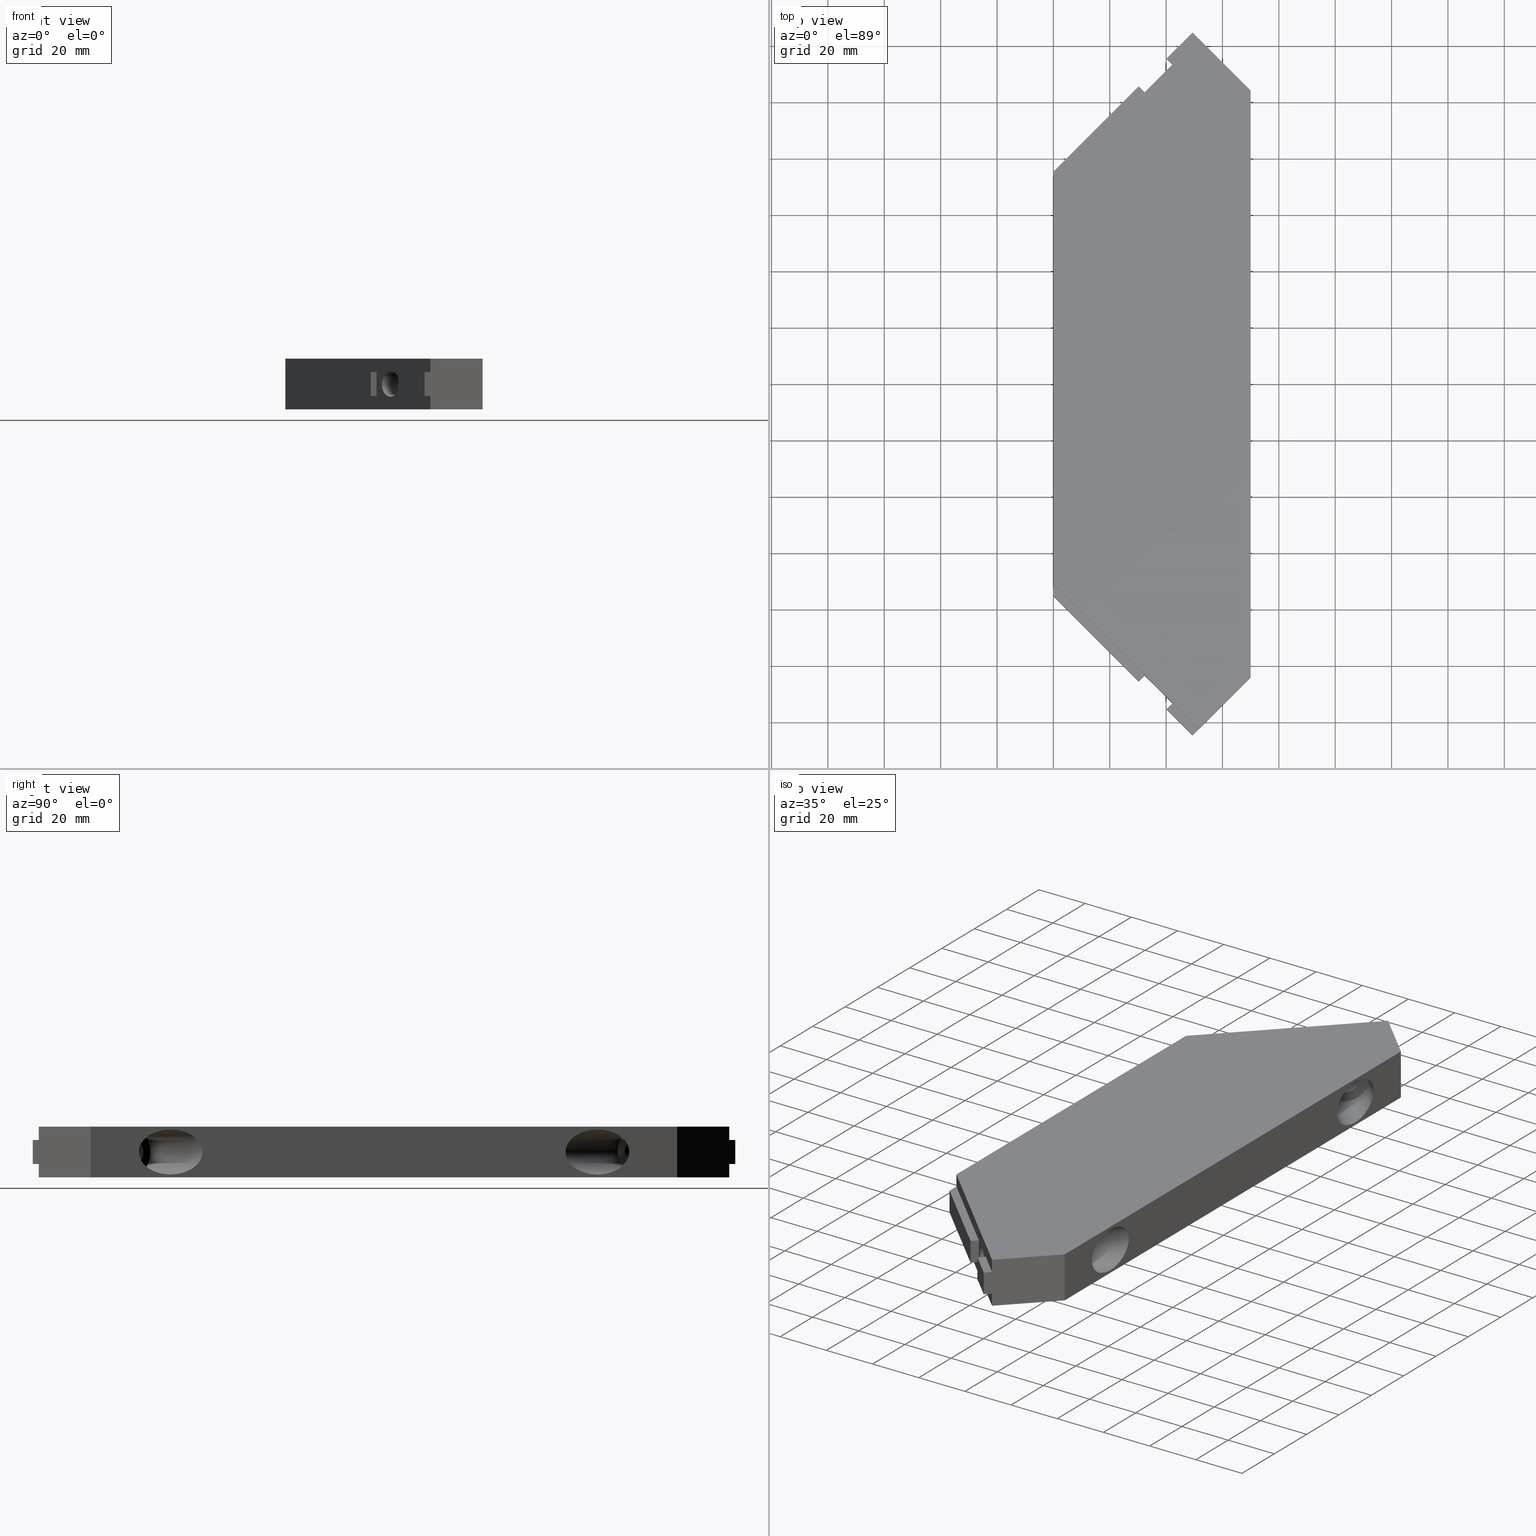
[diagram: canonical four-view strip — front | top / right | iso, engineering-drawing reading convention]
A machine part, canonical four-view strip (front | top / right | iso — engineering-drawing reading convention). The complete STEP part file that produces these views, byte-faithful:
ISO-10303-21;
HEADER;
/* Generated by software containing ST-Developer
 * from STEP Tools, Inc. (www.steptools.com) 
 */

FILE_DESCRIPTION(
/* description */ ('RINFORZO ANGOLARE SERIE 45 S/FORI FILET.'),
/* implementation_level */ '2;1');

FILE_NAME(
/* name */ 
'Q:\\Catalogo\\2_Accessori Dierre\\Per Download Web e catalogo cartace
o\\CATALOGO ELEMENTI ASSEMBLAGGIO\\PAGINA 40\\DGIPD0000070.stp',
/* time_stamp */ '2018-11-02T11:03:30+01:00',
/* author */ ('fzagni'),
/* organization */ (''),
/* preprocessor_version */ 'ST-DEVELOPER v16.1',
/* originating_system */ 'Autodesk Inventor 2016',
/* authorisation */ '');

FILE_SCHEMA (('AUTOMOTIVE_DESIGN { 1 0 10303 214 3 1 1 }'));
ENDSEC;

DATA;
#10=MECHANICAL_DESIGN_GEOMETRIC_PRESENTATION_REPRESENTATION('',(#13),#913);
#11=SHAPE_REPRESENTATION_RELATIONSHIP('SRR','None',#922,#12);
#12=ADVANCED_BREP_SHAPE_REPRESENTATION('',(#14),#912);
#13=STYLED_ITEM('',(#931),#14);
#14=MANIFOLD_SOLID_BREP('None',#569);
#15=CYLINDRICAL_SURFACE('',#599,4.50000000000004);
#16=CYLINDRICAL_SURFACE('',#603,8.00000037595068);
#17=CYLINDRICAL_SURFACE('',#604,8.00000037595084);
#18=CYLINDRICAL_SURFACE('',#608,4.49999999999994);
#19=CIRCLE('',#575,4.50000000000004);
#20=CIRCLE('',#577,4.49999999999994);
#21=CIRCLE('',#600,4.50000000000004);
#22=CIRCLE('',#602,8.00000037595068);
#23=CIRCLE('',#605,8.00000037595082);
#24=CIRCLE('',#607,4.49999999999994);
#25=FACE_BOUND('',#68,.T.);
#26=FACE_BOUND('',#69,.T.);
#27=FACE_BOUND('',#71,.T.);
#28=FACE_BOUND('',#73,.T.);
#29=FACE_BOUND('',#96,.T.);
#30=FACE_BOUND('',#98,.T.);
#31=FACE_BOUND('',#100,.T.);
#32=FACE_BOUND('',#102,.T.);
#33=FACE_BOUND('',#104,.T.);
#34=FACE_BOUND('',#106,.T.);
#35=ELLIPSE('',#572,11.3137090306593,8.00000037595068);
#36=ELLIPSE('',#573,11.3137090306595,8.00000037595084);
#37=FACE_OUTER_BOUND('',#67,.T.);
#38=FACE_OUTER_BOUND('',#70,.T.);
#39=FACE_OUTER_BOUND('',#72,.T.);
#40=FACE_OUTER_BOUND('',#74,.T.);
#41=FACE_OUTER_BOUND('',#75,.T.);
#42=FACE_OUTER_BOUND('',#76,.T.);
#43=FACE_OUTER_BOUND('',#77,.T.);
#44=FACE_OUTER_BOUND('',#78,.T.);
#45=FACE_OUTER_BOUND('',#79,.T.);
#46=FACE_OUTER_BOUND('',#80,.T.);
#47=FACE_OUTER_BOUND('',#81,.T.);
#48=FACE_OUTER_BOUND('',#82,.T.);
#49=FACE_OUTER_BOUND('',#83,.T.);
#50=FACE_OUTER_BOUND('',#84,.T.);
#51=FACE_OUTER_BOUND('',#85,.T.);
#52=FACE_OUTER_BOUND('',#86,.T.);
#53=FACE_OUTER_BOUND('',#87,.T.);
#54=FACE_OUTER_BOUND('',#88,.T.);
#55=FACE_OUTER_BOUND('',#89,.T.);
#56=FACE_OUTER_BOUND('',#90,.T.);
#57=FACE_OUTER_BOUND('',#91,.T.);
#58=FACE_OUTER_BOUND('',#92,.T.);
#59=FACE_OUTER_BOUND('',#93,.T.);
#60=FACE_OUTER_BOUND('',#94,.T.);
#61=FACE_OUTER_BOUND('',#95,.T.);
#62=FACE_OUTER_BOUND('',#97,.T.);
#63=FACE_OUTER_BOUND('',#99,.T.);
#64=FACE_OUTER_BOUND('',#101,.T.);
#65=FACE_OUTER_BOUND('',#103,.T.);
#66=FACE_OUTER_BOUND('',#105,.T.);
#67=EDGE_LOOP('',(#365,#366,#367,#368));
#68=EDGE_LOOP('',(#369));
#69=EDGE_LOOP('',(#370));
#70=EDGE_LOOP('',(#371,#372,#373,#374,#375,#376,#377,#378,#379,#380,#381,
#382));
#71=EDGE_LOOP('',(#383));
#72=EDGE_LOOP('',(#384,#385,#386,#387,#388,#389,#390,#391,#392,#393,#394,
#395));
#73=EDGE_LOOP('',(#396));
#74=EDGE_LOOP('',(#397,#398,#399,#400,#401,#402));
#75=EDGE_LOOP('',(#403,#404,#405,#406,#407,#408));
#76=EDGE_LOOP('',(#409,#410,#411,#412));
#77=EDGE_LOOP('',(#413,#414,#415,#416));
#78=EDGE_LOOP('',(#417,#418,#419,#420));
#79=EDGE_LOOP('',(#421,#422,#423,#424));
#80=EDGE_LOOP('',(#425,#426,#427,#428));
#81=EDGE_LOOP('',(#429,#430,#431,#432));
#82=EDGE_LOOP('',(#433,#434,#435,#436));
#83=EDGE_LOOP('',(#437,#438,#439,#440));
#84=EDGE_LOOP('',(#441,#442,#443,#444,#445,#446,#447,#448));
#85=EDGE_LOOP('',(#449,#450,#451,#452));
#86=EDGE_LOOP('',(#453,#454,#455,#456));
#87=EDGE_LOOP('',(#457,#458,#459,#460));
#88=EDGE_LOOP('',(#461,#462,#463,#464));
#89=EDGE_LOOP('',(#465,#466,#467,#468,#469,#470,#471,#472,#473,#474,#475,
#476));
#90=EDGE_LOOP('',(#477,#478,#479,#480));
#91=EDGE_LOOP('',(#481,#482,#483,#484));
#92=EDGE_LOOP('',(#485,#486,#487,#488));
#93=EDGE_LOOP('',(#489,#490,#491,#492));
#94=EDGE_LOOP('',(#493,#494,#495,#496,#497,#498,#499,#500));
#95=EDGE_LOOP('',(#501));
#96=EDGE_LOOP('',(#502));
#97=EDGE_LOOP('',(#503));
#98=EDGE_LOOP('',(#504));
#99=EDGE_LOOP('',(#505));
#100=EDGE_LOOP('',(#506));
#101=EDGE_LOOP('',(#507));
#102=EDGE_LOOP('',(#508));
#103=EDGE_LOOP('',(#509));
#104=EDGE_LOOP('',(#510));
#105=EDGE_LOOP('',(#511));
#106=EDGE_LOOP('',(#512));
#107=LINE('',#757,#173);
#108=LINE('',#759,#174);
#109=LINE('',#761,#175);
#110=LINE('',#762,#176);
#111=LINE('',#770,#177);
#112=LINE('',#772,#178);
#113=LINE('',#774,#179);
#114=LINE('',#776,#180);
#115=LINE('',#778,#181);
#116=LINE('',#780,#182);
#117=LINE('',#782,#183);
#118=LINE('',#784,#184);
#119=LINE('',#786,#185);
#120=LINE('',#788,#186);
#121=LINE('',#790,#187);
#122=LINE('',#791,#188);
#123=LINE('',#797,#189);
#124=LINE('',#799,#190);
#125=LINE('',#801,#191);
#126=LINE('',#803,#192);
#127=LINE('',#805,#193);
#128=LINE('',#807,#194);
#129=LINE('',#809,#195);
#130=LINE('',#811,#196);
#131=LINE('',#813,#197);
#132=LINE('',#815,#198);
#133=LINE('',#817,#199);
#134=LINE('',#818,#200);
#135=LINE('',#822,#201);
#136=LINE('',#823,#202);
#137=LINE('',#824,#203);
#138=LINE('',#826,#204);
#139=LINE('',#827,#205);
#140=LINE('',#828,#206);
#141=LINE('',#832,#207);
#142=LINE('',#833,#208);
#143=LINE('',#834,#209);
#144=LINE('',#837,#210);
#145=LINE('',#839,#211);
#146=LINE('',#840,#212);
#147=LINE('',#842,#213);
#148=LINE('',#844,#214);
#149=LINE('',#848,#215);
#150=LINE('',#850,#216);
#151=LINE('',#852,#217);
#152=LINE('',#853,#218);
#153=LINE('',#855,#219);
#154=LINE('',#856,#220);
#155=LINE('',#858,#221);
#156=LINE('',#860,#222);
#157=LINE('',#865,#223);
#158=LINE('',#867,#224);
#159=LINE('',#869,#225);
#160=LINE('',#870,#226);
#161=LINE('',#872,#227);
#162=LINE('',#873,#228);
#163=LINE('',#875,#229);
#164=LINE('',#877,#230);
#165=LINE('',#882,#231);
#166=LINE('',#883,#232);
#167=LINE('',#884,#233);
#168=LINE('',#887,#234);
#169=LINE('',#889,#235);
#170=LINE('',#890,#236);
#171=LINE('',#892,#237);
#172=LINE('',#894,#238);
#173=VECTOR('',#613,18.);
#174=VECTOR('',#614,207.999999999168);
#175=VECTOR('',#615,18.);
#176=VECTOR('',#616,207.999999999168);
#177=VECTOR('',#623,4.75);
#178=VECTOR('',#624,12.999999780144);
#179=VECTOR('',#625,8.5);
#180=VECTOR('',#626,12.999999780144);
#181=VECTOR('',#627,4.75);
#182=VECTOR('',#628,72.831998461923);
#183=VECTOR('',#629,4.75);
#184=VECTOR('',#630,45.8319985921907);
#185=VECTOR('',#631,8.5);
#186=VECTOR('',#632,45.8319985921907);
#187=VECTOR('',#633,4.75);
#188=VECTOR('',#634,72.831998461923);
#189=VECTOR('',#639,4.75);
#190=VECTOR('',#640,45.831998592191);
#191=VECTOR('',#641,8.5);
#192=VECTOR('',#642,45.831998592191);
#193=VECTOR('',#643,4.75);
#194=VECTOR('',#644,72.831998461923);
#195=VECTOR('',#645,4.75);
#196=VECTOR('',#646,12.9999997801435);
#197=VECTOR('',#647,8.5);
#198=VECTOR('',#648,12.9999997801435);
#199=VECTOR('',#649,4.75);
#200=VECTOR('',#650,72.831998461923);
#201=VECTOR('',#655,26.1629509037977);
#202=VECTOR('',#656,141.999999999432);
#203=VECTOR('',#657,26.1629509037973);
#204=VECTOR('',#660,26.1629509037973);
#205=VECTOR('',#661,141.999999999432);
#206=VECTOR('',#662,26.1629509037977);
#207=VECTOR('',#665,8.5);
#208=VECTOR('',#666,2.99999951412127);
#209=VECTOR('',#667,2.99999951412127);
#210=VECTOR('',#670,42.8319983709626);
#211=VECTOR('',#671,8.5);
#212=VECTOR('',#672,42.8319983709626);
#213=VECTOR('',#675,4.24264099998299);
#214=VECTOR('',#678,4.24264099998299);
#215=VECTOR('',#681,12.9999997801437);
#216=VECTOR('',#682,8.5);
#217=VECTOR('',#683,12.9999997801437);
#218=VECTOR('',#684,8.5);
#219=VECTOR('',#687,2.99999951412086);
#220=VECTOR('',#688,2.99999951412086);
#221=VECTOR('',#691,2.99999951412108);
#222=VECTOR('',#694,2.99999951412108);
#223=VECTOR('',#699,42.831998370963);
#224=VECTOR('',#700,8.5);
#225=VECTOR('',#701,42.831998370963);
#226=VECTOR('',#702,8.5);
#227=VECTOR('',#705,2.99999951412133);
#228=VECTOR('',#706,2.99999951412133);
#229=VECTOR('',#709,4.24264099998302);
#230=VECTOR('',#712,4.24264099998302);
#231=VECTOR('',#717,8.5);
#232=VECTOR('',#718,2.99999951412139);
#233=VECTOR('',#719,2.99999951412139);
#234=VECTOR('',#722,12.9999997801436);
#235=VECTOR('',#723,8.5);
#236=VECTOR('',#724,12.9999997801436);
#237=VECTOR('',#727,2.99999951412147);
#238=VECTOR('',#730,2.99999951412147);
#239=VERTEX_POINT('',#755);
#240=VERTEX_POINT('',#756);
#241=VERTEX_POINT('',#758);
#242=VERTEX_POINT('',#760);
#243=VERTEX_POINT('',#763);
#244=VERTEX_POINT('',#765);
#245=VERTEX_POINT('',#768);
#246=VERTEX_POINT('',#769);
#247=VERTEX_POINT('',#771);
#248=VERTEX_POINT('',#773);
#249=VERTEX_POINT('',#775);
#250=VERTEX_POINT('',#777);
#251=VERTEX_POINT('',#779);
#252=VERTEX_POINT('',#781);
#253=VERTEX_POINT('',#783);
#254=VERTEX_POINT('',#785);
#255=VERTEX_POINT('',#787);
#256=VERTEX_POINT('',#789);
#257=VERTEX_POINT('',#792);
#258=VERTEX_POINT('',#795);
#259=VERTEX_POINT('',#796);
#260=VERTEX_POINT('',#798);
#261=VERTEX_POINT('',#800);
#262=VERTEX_POINT('',#802);
#263=VERTEX_POINT('',#804);
#264=VERTEX_POINT('',#806);
#265=VERTEX_POINT('',#808);
#266=VERTEX_POINT('',#810);
#267=VERTEX_POINT('',#812);
#268=VERTEX_POINT('',#814);
#269=VERTEX_POINT('',#816);
#270=VERTEX_POINT('',#819);
#271=VERTEX_POINT('',#830);
#272=VERTEX_POINT('',#831);
#273=VERTEX_POINT('',#836);
#274=VERTEX_POINT('',#838);
#275=VERTEX_POINT('',#846);
#276=VERTEX_POINT('',#847);
#277=VERTEX_POINT('',#849);
#278=VERTEX_POINT('',#851);
#279=VERTEX_POINT('',#863);
#280=VERTEX_POINT('',#864);
#281=VERTEX_POINT('',#866);
#282=VERTEX_POINT('',#868);
#283=VERTEX_POINT('',#880);
#284=VERTEX_POINT('',#881);
#285=VERTEX_POINT('',#886);
#286=VERTEX_POINT('',#888);
#287=VERTEX_POINT('',#897);
#288=VERTEX_POINT('',#900);
#289=VERTEX_POINT('',#904);
#290=VERTEX_POINT('',#907);
#291=EDGE_CURVE('',#239,#240,#107,.T.);
#292=EDGE_CURVE('',#240,#241,#108,.T.);
#293=EDGE_CURVE('',#242,#241,#109,.T.);
#294=EDGE_CURVE('',#239,#242,#110,.T.);
#295=EDGE_CURVE('',#243,#243,#35,.T.);
#296=EDGE_CURVE('',#244,#244,#36,.T.);
#297=EDGE_CURVE('',#245,#246,#111,.T.);
#298=EDGE_CURVE('',#247,#246,#112,.T.);
#299=EDGE_CURVE('',#248,#247,#113,.T.);
#300=EDGE_CURVE('',#248,#249,#114,.T.);
#301=EDGE_CURVE('',#249,#250,#115,.T.);
#302=EDGE_CURVE('',#250,#251,#116,.T.);
#303=EDGE_CURVE('',#252,#251,#117,.T.);
#304=EDGE_CURVE('',#252,#253,#118,.T.);
#305=EDGE_CURVE('',#253,#254,#119,.T.);
#306=EDGE_CURVE('',#255,#254,#120,.T.);
#307=EDGE_CURVE('',#256,#255,#121,.T.);
#308=EDGE_CURVE('',#245,#256,#122,.T.);
#309=EDGE_CURVE('',#257,#257,#19,.T.);
#310=EDGE_CURVE('',#258,#259,#123,.T.);
#311=EDGE_CURVE('',#260,#259,#124,.T.);
#312=EDGE_CURVE('',#261,#260,#125,.T.);
#313=EDGE_CURVE('',#261,#262,#126,.T.);
#314=EDGE_CURVE('',#262,#263,#127,.T.);
#315=EDGE_CURVE('',#263,#264,#128,.T.);
#316=EDGE_CURVE('',#265,#264,#129,.T.);
#317=EDGE_CURVE('',#265,#266,#130,.T.);
#318=EDGE_CURVE('',#266,#267,#131,.T.);
#319=EDGE_CURVE('',#268,#267,#132,.T.);
#320=EDGE_CURVE('',#269,#268,#133,.T.);
#321=EDGE_CURVE('',#258,#269,#134,.T.);
#322=EDGE_CURVE('',#270,#270,#20,.T.);
#323=EDGE_CURVE('',#242,#245,#135,.T.);
#324=EDGE_CURVE('',#256,#258,#136,.T.);
#325=EDGE_CURVE('',#269,#239,#137,.T.);
#326=EDGE_CURVE('',#264,#240,#138,.T.);
#327=EDGE_CURVE('',#251,#263,#139,.T.);
#328=EDGE_CURVE('',#241,#250,#140,.T.);
#329=EDGE_CURVE('',#271,#272,#141,.T.);
#330=EDGE_CURVE('',#254,#272,#142,.T.);
#331=EDGE_CURVE('',#253,#271,#143,.T.);
#332=EDGE_CURVE('',#271,#273,#144,.T.);
#333=EDGE_CURVE('',#273,#274,#145,.T.);
#334=EDGE_CURVE('',#272,#274,#146,.T.);
#335=EDGE_CURVE('',#273,#252,#147,.T.);
#336=EDGE_CURVE('',#274,#255,#148,.T.);
#337=EDGE_CURVE('',#275,#276,#149,.T.);
#338=EDGE_CURVE('',#276,#277,#150,.T.);
#339=EDGE_CURVE('',#278,#277,#151,.T.);
#340=EDGE_CURVE('',#275,#278,#152,.T.);
#341=EDGE_CURVE('',#276,#248,#153,.T.);
#342=EDGE_CURVE('',#277,#247,#154,.T.);
#343=EDGE_CURVE('',#249,#275,#155,.T.);
#344=EDGE_CURVE('',#246,#278,#156,.T.);
#345=EDGE_CURVE('',#279,#280,#157,.T.);
#346=EDGE_CURVE('',#280,#281,#158,.T.);
#347=EDGE_CURVE('',#282,#281,#159,.T.);
#348=EDGE_CURVE('',#279,#282,#160,.T.);
#349=EDGE_CURVE('',#280,#261,#161,.T.);
#350=EDGE_CURVE('',#281,#260,#162,.T.);
#351=EDGE_CURVE('',#262,#279,#163,.T.);
#352=EDGE_CURVE('',#259,#282,#164,.T.);
#353=EDGE_CURVE('',#283,#284,#165,.T.);
#354=EDGE_CURVE('',#267,#284,#166,.T.);
#355=EDGE_CURVE('',#266,#283,#167,.T.);
#356=EDGE_CURVE('',#283,#285,#168,.T.);
#357=EDGE_CURVE('',#285,#286,#169,.T.);
#358=EDGE_CURVE('',#284,#286,#170,.T.);
#359=EDGE_CURVE('',#285,#265,#171,.T.);
#360=EDGE_CURVE('',#286,#268,#172,.T.);
#361=EDGE_CURVE('',#287,#287,#21,.T.);
#362=EDGE_CURVE('',#288,#288,#22,.T.);
#363=EDGE_CURVE('',#289,#289,#23,.T.);
#364=EDGE_CURVE('',#290,#290,#24,.T.);
#365=ORIENTED_EDGE('',*,*,#291,.T.);
#366=ORIENTED_EDGE('',*,*,#292,.T.);
#367=ORIENTED_EDGE('',*,*,#293,.F.);
#368=ORIENTED_EDGE('',*,*,#294,.F.);
#369=ORIENTED_EDGE('',*,*,#295,.F.);
#370=ORIENTED_EDGE('',*,*,#296,.F.);
#371=ORIENTED_EDGE('',*,*,#297,.T.);
#372=ORIENTED_EDGE('',*,*,#298,.F.);
#373=ORIENTED_EDGE('',*,*,#299,.F.);
#374=ORIENTED_EDGE('',*,*,#300,.T.);
#375=ORIENTED_EDGE('',*,*,#301,.T.);
#376=ORIENTED_EDGE('',*,*,#302,.T.);
#377=ORIENTED_EDGE('',*,*,#303,.F.);
#378=ORIENTED_EDGE('',*,*,#304,.T.);
#379=ORIENTED_EDGE('',*,*,#305,.T.);
#380=ORIENTED_EDGE('',*,*,#306,.F.);
#381=ORIENTED_EDGE('',*,*,#307,.F.);
#382=ORIENTED_EDGE('',*,*,#308,.F.);
#383=ORIENTED_EDGE('',*,*,#309,.F.);
#384=ORIENTED_EDGE('',*,*,#310,.T.);
#385=ORIENTED_EDGE('',*,*,#311,.F.);
#386=ORIENTED_EDGE('',*,*,#312,.F.);
#387=ORIENTED_EDGE('',*,*,#313,.T.);
#388=ORIENTED_EDGE('',*,*,#314,.T.);
#389=ORIENTED_EDGE('',*,*,#315,.T.);
#390=ORIENTED_EDGE('',*,*,#316,.F.);
#391=ORIENTED_EDGE('',*,*,#317,.T.);
#392=ORIENTED_EDGE('',*,*,#318,.T.);
#393=ORIENTED_EDGE('',*,*,#319,.F.);
#394=ORIENTED_EDGE('',*,*,#320,.F.);
#395=ORIENTED_EDGE('',*,*,#321,.F.);
#396=ORIENTED_EDGE('',*,*,#322,.F.);
#397=ORIENTED_EDGE('',*,*,#294,.T.);
#398=ORIENTED_EDGE('',*,*,#323,.T.);
#399=ORIENTED_EDGE('',*,*,#308,.T.);
#400=ORIENTED_EDGE('',*,*,#324,.T.);
#401=ORIENTED_EDGE('',*,*,#321,.T.);
#402=ORIENTED_EDGE('',*,*,#325,.T.);
#403=ORIENTED_EDGE('',*,*,#326,.F.);
#404=ORIENTED_EDGE('',*,*,#315,.F.);
#405=ORIENTED_EDGE('',*,*,#327,.F.);
#406=ORIENTED_EDGE('',*,*,#302,.F.);
#407=ORIENTED_EDGE('',*,*,#328,.F.);
#408=ORIENTED_EDGE('',*,*,#292,.F.);
#409=ORIENTED_EDGE('',*,*,#329,.T.);
#410=ORIENTED_EDGE('',*,*,#330,.F.);
#411=ORIENTED_EDGE('',*,*,#305,.F.);
#412=ORIENTED_EDGE('',*,*,#331,.T.);
#413=ORIENTED_EDGE('',*,*,#332,.T.);
#414=ORIENTED_EDGE('',*,*,#333,.T.);
#415=ORIENTED_EDGE('',*,*,#334,.F.);
#416=ORIENTED_EDGE('',*,*,#329,.F.);
#417=ORIENTED_EDGE('',*,*,#331,.F.);
#418=ORIENTED_EDGE('',*,*,#304,.F.);
#419=ORIENTED_EDGE('',*,*,#335,.F.);
#420=ORIENTED_EDGE('',*,*,#332,.F.);
#421=ORIENTED_EDGE('',*,*,#334,.T.);
#422=ORIENTED_EDGE('',*,*,#336,.T.);
#423=ORIENTED_EDGE('',*,*,#306,.T.);
#424=ORIENTED_EDGE('',*,*,#330,.T.);
#425=ORIENTED_EDGE('',*,*,#337,.T.);
#426=ORIENTED_EDGE('',*,*,#338,.T.);
#427=ORIENTED_EDGE('',*,*,#339,.F.);
#428=ORIENTED_EDGE('',*,*,#340,.F.);
#429=ORIENTED_EDGE('',*,*,#341,.T.);
#430=ORIENTED_EDGE('',*,*,#299,.T.);
#431=ORIENTED_EDGE('',*,*,#342,.F.);
#432=ORIENTED_EDGE('',*,*,#338,.F.);
#433=ORIENTED_EDGE('',*,*,#343,.F.);
#434=ORIENTED_EDGE('',*,*,#300,.F.);
#435=ORIENTED_EDGE('',*,*,#341,.F.);
#436=ORIENTED_EDGE('',*,*,#337,.F.);
#437=ORIENTED_EDGE('',*,*,#339,.T.);
#438=ORIENTED_EDGE('',*,*,#342,.T.);
#439=ORIENTED_EDGE('',*,*,#298,.T.);
#440=ORIENTED_EDGE('',*,*,#344,.T.);
#441=ORIENTED_EDGE('',*,*,#293,.T.);
#442=ORIENTED_EDGE('',*,*,#328,.T.);
#443=ORIENTED_EDGE('',*,*,#301,.F.);
#444=ORIENTED_EDGE('',*,*,#343,.T.);
#445=ORIENTED_EDGE('',*,*,#340,.T.);
#446=ORIENTED_EDGE('',*,*,#344,.F.);
#447=ORIENTED_EDGE('',*,*,#297,.F.);
#448=ORIENTED_EDGE('',*,*,#323,.F.);
#449=ORIENTED_EDGE('',*,*,#345,.T.);
#450=ORIENTED_EDGE('',*,*,#346,.T.);
#451=ORIENTED_EDGE('',*,*,#347,.F.);
#452=ORIENTED_EDGE('',*,*,#348,.F.);
#453=ORIENTED_EDGE('',*,*,#349,.T.);
#454=ORIENTED_EDGE('',*,*,#312,.T.);
#455=ORIENTED_EDGE('',*,*,#350,.F.);
#456=ORIENTED_EDGE('',*,*,#346,.F.);
#457=ORIENTED_EDGE('',*,*,#351,.F.);
#458=ORIENTED_EDGE('',*,*,#313,.F.);
#459=ORIENTED_EDGE('',*,*,#349,.F.);
#460=ORIENTED_EDGE('',*,*,#345,.F.);
#461=ORIENTED_EDGE('',*,*,#347,.T.);
#462=ORIENTED_EDGE('',*,*,#350,.T.);
#463=ORIENTED_EDGE('',*,*,#311,.T.);
#464=ORIENTED_EDGE('',*,*,#352,.T.);
#465=ORIENTED_EDGE('',*,*,#307,.T.);
#466=ORIENTED_EDGE('',*,*,#336,.F.);
#467=ORIENTED_EDGE('',*,*,#333,.F.);
#468=ORIENTED_EDGE('',*,*,#335,.T.);
#469=ORIENTED_EDGE('',*,*,#303,.T.);
#470=ORIENTED_EDGE('',*,*,#327,.T.);
#471=ORIENTED_EDGE('',*,*,#314,.F.);
#472=ORIENTED_EDGE('',*,*,#351,.T.);
#473=ORIENTED_EDGE('',*,*,#348,.T.);
#474=ORIENTED_EDGE('',*,*,#352,.F.);
#475=ORIENTED_EDGE('',*,*,#310,.F.);
#476=ORIENTED_EDGE('',*,*,#324,.F.);
#477=ORIENTED_EDGE('',*,*,#353,.T.);
#478=ORIENTED_EDGE('',*,*,#354,.F.);
#479=ORIENTED_EDGE('',*,*,#318,.F.);
#480=ORIENTED_EDGE('',*,*,#355,.T.);
#481=ORIENTED_EDGE('',*,*,#356,.T.);
#482=ORIENTED_EDGE('',*,*,#357,.T.);
#483=ORIENTED_EDGE('',*,*,#358,.F.);
#484=ORIENTED_EDGE('',*,*,#353,.F.);
#485=ORIENTED_EDGE('',*,*,#355,.F.);
#486=ORIENTED_EDGE('',*,*,#317,.F.);
#487=ORIENTED_EDGE('',*,*,#359,.F.);
#488=ORIENTED_EDGE('',*,*,#356,.F.);
#489=ORIENTED_EDGE('',*,*,#358,.T.);
#490=ORIENTED_EDGE('',*,*,#360,.T.);
#491=ORIENTED_EDGE('',*,*,#319,.T.);
#492=ORIENTED_EDGE('',*,*,#354,.T.);
#493=ORIENTED_EDGE('',*,*,#325,.F.);
#494=ORIENTED_EDGE('',*,*,#320,.T.);
#495=ORIENTED_EDGE('',*,*,#360,.F.);
#496=ORIENTED_EDGE('',*,*,#357,.F.);
#497=ORIENTED_EDGE('',*,*,#359,.T.);
#498=ORIENTED_EDGE('',*,*,#316,.T.);
#499=ORIENTED_EDGE('',*,*,#326,.T.);
#500=ORIENTED_EDGE('',*,*,#291,.F.);
#501=ORIENTED_EDGE('',*,*,#309,.T.);
#502=ORIENTED_EDGE('',*,*,#361,.F.);
#503=ORIENTED_EDGE('',*,*,#362,.F.);
#504=ORIENTED_EDGE('',*,*,#361,.T.);
#505=ORIENTED_EDGE('',*,*,#295,.T.);
#506=ORIENTED_EDGE('',*,*,#362,.T.);
#507=ORIENTED_EDGE('',*,*,#296,.T.);
#508=ORIENTED_EDGE('',*,*,#363,.F.);
#509=ORIENTED_EDGE('',*,*,#363,.T.);
#510=ORIENTED_EDGE('',*,*,#364,.F.);
#511=ORIENTED_EDGE('',*,*,#322,.T.);
#512=ORIENTED_EDGE('',*,*,#364,.T.);
#513=PLANE('',#571);
#514=PLANE('',#574);
#515=PLANE('',#576);
#516=PLANE('',#578);
#517=PLANE('',#579);
#518=PLANE('',#580);
#519=PLANE('',#581);
#520=PLANE('',#582);
#521=PLANE('',#583);
#522=PLANE('',#584);
#523=PLANE('',#585);
#524=PLANE('',#586);
#525=PLANE('',#587);
#526=PLANE('',#588);
#527=PLANE('',#589);
#528=PLANE('',#590);
#529=PLANE('',#591);
#530=PLANE('',#592);
#531=PLANE('',#593);
#532=PLANE('',#594);
#533=PLANE('',#595);
#534=PLANE('',#596);
#535=PLANE('',#597);
#536=PLANE('',#598);
#537=PLANE('',#601);
#538=PLANE('',#606);
#539=ADVANCED_FACE('',(#37,#25,#26),#513,.F.);
#540=ADVANCED_FACE('',(#38,#27),#514,.F.);
#541=ADVANCED_FACE('',(#39,#28),#515,.F.);
#542=ADVANCED_FACE('',(#40),#516,.T.);
#543=ADVANCED_FACE('',(#41),#517,.F.);
#544=ADVANCED_FACE('',(#42),#518,.T.);
#545=ADVANCED_FACE('',(#43),#519,.T.);
#546=ADVANCED_FACE('',(#44),#520,.F.);
#547=ADVANCED_FACE('',(#45),#521,.T.);
#548=ADVANCED_FACE('',(#46),#522,.T.);
#549=ADVANCED_FACE('',(#47),#523,.T.);
#550=ADVANCED_FACE('',(#48),#524,.F.);
#551=ADVANCED_FACE('',(#49),#525,.T.);
#552=ADVANCED_FACE('',(#50),#526,.F.);
#553=ADVANCED_FACE('',(#51),#527,.T.);
#554=ADVANCED_FACE('',(#52),#528,.T.);
#555=ADVANCED_FACE('',(#53),#529,.F.);
#556=ADVANCED_FACE('',(#54),#530,.T.);
#557=ADVANCED_FACE('',(#55),#531,.F.);
#558=ADVANCED_FACE('',(#56),#532,.T.);
#559=ADVANCED_FACE('',(#57),#533,.T.);
#560=ADVANCED_FACE('',(#58),#534,.F.);
#561=ADVANCED_FACE('',(#59),#535,.T.);
#562=ADVANCED_FACE('',(#60),#536,.F.);
#563=ADVANCED_FACE('',(#61,#29),#15,.F.);
#564=ADVANCED_FACE('',(#62,#30),#537,.T.);
#565=ADVANCED_FACE('',(#63,#31),#16,.F.);
#566=ADVANCED_FACE('',(#64,#32),#17,.F.);
#567=ADVANCED_FACE('',(#65,#33),#538,.T.);
#568=ADVANCED_FACE('',(#66,#34),#18,.F.);
#569=CLOSED_SHELL('',(#539,#540,#541,#542,#543,#544,#545,#546,#547,#548,
#549,#550,#551,#552,#553,#554,#555,#556,#557,#558,#559,#560,#561,#562,#563,
#564,#565,#566,#567,#568));
#570=AXIS2_PLACEMENT_3D('placement',#753,#609,#610);
#571=AXIS2_PLACEMENT_3D('',#754,#611,#612);
#572=AXIS2_PLACEMENT_3D('',#764,#617,#618);
#573=AXIS2_PLACEMENT_3D('',#766,#619,#620);
#574=AXIS2_PLACEMENT_3D('',#767,#621,#622);
#575=AXIS2_PLACEMENT_3D('',#793,#635,#636);
#576=AXIS2_PLACEMENT_3D('',#794,#637,#638);
#577=AXIS2_PLACEMENT_3D('',#820,#651,#652);
#578=AXIS2_PLACEMENT_3D('',#821,#653,#654);
#579=AXIS2_PLACEMENT_3D('',#825,#658,#659);
#580=AXIS2_PLACEMENT_3D('',#829,#663,#664);
#581=AXIS2_PLACEMENT_3D('',#835,#668,#669);
#582=AXIS2_PLACEMENT_3D('',#841,#673,#674);
#583=AXIS2_PLACEMENT_3D('',#843,#676,#677);
#584=AXIS2_PLACEMENT_3D('',#845,#679,#680);
#585=AXIS2_PLACEMENT_3D('',#854,#685,#686);
#586=AXIS2_PLACEMENT_3D('',#857,#689,#690);
#587=AXIS2_PLACEMENT_3D('',#859,#692,#693);
#588=AXIS2_PLACEMENT_3D('',#861,#695,#696);
#589=AXIS2_PLACEMENT_3D('',#862,#697,#698);
#590=AXIS2_PLACEMENT_3D('',#871,#703,#704);
#591=AXIS2_PLACEMENT_3D('',#874,#707,#708);
#592=AXIS2_PLACEMENT_3D('',#876,#710,#711);
#593=AXIS2_PLACEMENT_3D('',#878,#713,#714);
#594=AXIS2_PLACEMENT_3D('',#879,#715,#716);
#595=AXIS2_PLACEMENT_3D('',#885,#720,#721);
#596=AXIS2_PLACEMENT_3D('',#891,#725,#726);
#597=AXIS2_PLACEMENT_3D('',#893,#728,#729);
#598=AXIS2_PLACEMENT_3D('',#895,#731,#732);
#599=AXIS2_PLACEMENT_3D('',#896,#733,#734);
#600=AXIS2_PLACEMENT_3D('',#898,#735,#736);
#601=AXIS2_PLACEMENT_3D('',#899,#737,#738);
#602=AXIS2_PLACEMENT_3D('',#901,#739,#740);
#603=AXIS2_PLACEMENT_3D('',#902,#741,#742);
#604=AXIS2_PLACEMENT_3D('',#903,#743,#744);
#605=AXIS2_PLACEMENT_3D('',#905,#745,#746);
#606=AXIS2_PLACEMENT_3D('',#906,#747,#748);
#607=AXIS2_PLACEMENT_3D('',#908,#749,#750);
#608=AXIS2_PLACEMENT_3D('',#909,#751,#752);
#609=DIRECTION('axis',(0.,0.,1.));
#610=DIRECTION('refdir',(1.,0.,0.));
#611=DIRECTION('center_axis',(-1.,0.,0.));
#612=DIRECTION('ref_axis',(0.,0.,1.));
#613=DIRECTION('',(0.,0.,-1.));
#614=DIRECTION('',(0.,1.,0.));
#615=DIRECTION('',(0.,0.,-1.));
#616=DIRECTION('',(0.,1.,0.));
#617=DIRECTION('center_axis',(1.,0.,0.));
#618=DIRECTION('ref_axis',(0.,-1.,0.));
#619=DIRECTION('center_axis',(1.,0.,0.));
#620=DIRECTION('ref_axis',(0.,-1.,0.));
#621=DIRECTION('center_axis',(0.707106781186548,-0.707106781186548,0.));
#622=DIRECTION('ref_axis',(0.,0.,-1.));
#623=DIRECTION('',(0.,0.,-1.));
#624=DIRECTION('',(0.707106781186556,0.707106781186539,0.));
#625=DIRECTION('',(0.,0.,1.));
#626=DIRECTION('',(0.707106781186556,0.707106781186539,0.));
#627=DIRECTION('',(0.,0.,-1.));
#628=DIRECTION('',(-0.707106781186547,-0.707106781186548,0.));
#629=DIRECTION('',(0.,0.,-1.));
#630=DIRECTION('',(0.707106781186548,0.707106781186547,0.));
#631=DIRECTION('',(0.,0.,1.));
#632=DIRECTION('',(0.707106781186548,0.707106781186547,0.));
#633=DIRECTION('',(0.,0.,-1.));
#634=DIRECTION('',(-0.707106781186547,-0.707106781186548,0.));
#635=DIRECTION('center_axis',(-0.707106781186548,0.707106781186548,0.));
#636=DIRECTION('ref_axis',(-0.707106781186548,-0.707106781186548,0.));
#637=DIRECTION('center_axis',(0.707106781186548,0.707106781186548,0.));
#638=DIRECTION('ref_axis',(0.,0.,-1.));
#639=DIRECTION('',(0.,0.,-1.));
#640=DIRECTION('',(-0.707106781186542,0.707106781186553,0.));
#641=DIRECTION('',(0.,0.,1.));
#642=DIRECTION('',(-0.707106781186542,0.707106781186553,0.));
#643=DIRECTION('',(0.,0.,-1.));
#644=DIRECTION('',(0.707106781186547,-0.707106781186548,0.));
#645=DIRECTION('',(0.,0.,-1.));
#646=DIRECTION('',(-0.707106781186547,0.707106781186548,0.));
#647=DIRECTION('',(0.,0.,1.));
#648=DIRECTION('',(-0.707106781186547,0.707106781186548,0.));
#649=DIRECTION('',(0.,0.,-1.));
#650=DIRECTION('',(0.707106781186547,-0.707106781186548,0.));
#651=DIRECTION('center_axis',(-0.707106781186544,-0.707106781186551,0.));
#652=DIRECTION('ref_axis',(-0.707106781186551,0.707106781186544,0.));
#653=DIRECTION('center_axis',(0.,0.,1.));
#654=DIRECTION('ref_axis',(1.,0.,0.));
#655=DIRECTION('',(-0.707106781186539,0.707106781186556,0.));
#656=DIRECTION('',(0.,-1.,0.));
#657=DIRECTION('',(0.707106781186553,0.707106781186542,0.));
#658=DIRECTION('center_axis',(0.,0.,1.));
#659=DIRECTION('ref_axis',(1.,0.,0.));
#660=DIRECTION('',(0.707106781186553,0.707106781186542,0.));
#661=DIRECTION('',(0.,-1.,0.));
#662=DIRECTION('',(-0.707106781186539,0.707106781186556,0.));
#663=DIRECTION('center_axis',(0.70710678118654,0.707106781186555,0.));
#664=DIRECTION('ref_axis',(0.,0.,-1.));
#665=DIRECTION('',(0.,0.,1.));
#666=DIRECTION('',(-0.707106781186555,0.70710678118654,0.));
#667=DIRECTION('',(-0.707106781186555,0.70710678118654,0.));
#668=DIRECTION('center_axis',(-0.707106769513032,0.707106792860063,0.));
#669=DIRECTION('ref_axis',(0.,0.,1.));
#670=DIRECTION('',(-0.707106792860063,-0.707106769513032,0.));
#671=DIRECTION('',(0.,0.,1.));
#672=DIRECTION('',(-0.707106792860063,-0.707106769513032,0.));
#673=DIRECTION('center_axis',(0.,0.,1.));
#674=DIRECTION('ref_axis',(1.,0.,0.));
#675=DIRECTION('',(0.,-1.,0.));
#676=DIRECTION('center_axis',(0.,0.,1.));
#677=DIRECTION('ref_axis',(1.,0.,0.));
#678=DIRECTION('',(0.,-1.,0.));
#679=DIRECTION('center_axis',(-0.707106781186548,0.707106781186548,0.));
#680=DIRECTION('ref_axis',(0.,0.,1.));
#681=DIRECTION('',(-0.707106781186548,-0.707106781186548,0.));
#682=DIRECTION('',(0.,0.,1.));
#683=DIRECTION('',(-0.707106781186548,-0.707106781186548,0.));
#684=DIRECTION('',(0.,0.,1.));
#685=DIRECTION('center_axis',(-0.707106781186548,-0.707106781186548,0.));
#686=DIRECTION('ref_axis',(0.,0.,1.));
#687=DIRECTION('',(0.707106781186546,-0.707106781186549,0.));
#688=DIRECTION('',(0.707106781186546,-0.707106781186549,0.));
#689=DIRECTION('center_axis',(0.,0.,1.));
#690=DIRECTION('ref_axis',(1.,0.,0.));
#691=DIRECTION('',(-0.707106781186622,0.707106781186473,0.));
#692=DIRECTION('center_axis',(0.,0.,1.));
#693=DIRECTION('ref_axis',(1.,0.,0.));
#694=DIRECTION('',(-0.707106781186622,0.707106781186473,0.));
#695=DIRECTION('center_axis',(-0.707106781186552,-0.707106781186543,0.));
#696=DIRECTION('ref_axis',(0.,0.,1.));
#697=DIRECTION('center_axis',(-0.707106769513038,-0.707106792860057,0.));
#698=DIRECTION('ref_axis',(0.,0.,1.));
#699=DIRECTION('',(0.707106792860057,-0.707106769513038,0.));
#700=DIRECTION('',(0.,0.,1.));
#701=DIRECTION('',(0.707106792860057,-0.707106769513038,0.));
#702=DIRECTION('',(0.,0.,1.));
#703=DIRECTION('center_axis',(0.707106781186548,-0.707106781186548,0.));
#704=DIRECTION('ref_axis',(0.,0.,-1.));
#705=DIRECTION('',(0.70710678118655,0.707106781186545,0.));
#706=DIRECTION('',(0.70710678118655,0.707106781186545,0.));
#707=DIRECTION('center_axis',(0.,0.,1.));
#708=DIRECTION('ref_axis',(1.,0.,0.));
#709=DIRECTION('',(0.,-1.,0.));
#710=DIRECTION('center_axis',(0.,0.,1.));
#711=DIRECTION('ref_axis',(1.,0.,0.));
#712=DIRECTION('',(0.,-1.,0.));
#713=DIRECTION('center_axis',(1.,0.,0.));
#714=DIRECTION('ref_axis',(0.,0.,-1.));
#715=DIRECTION('center_axis',(-0.707106781186514,0.707106781186581,0.));
#716=DIRECTION('ref_axis',(0.,0.,1.));
#717=DIRECTION('',(0.,0.,1.));
#718=DIRECTION('',(-0.707106781186582,-0.707106781186513,0.));
#719=DIRECTION('',(-0.707106781186582,-0.707106781186513,0.));
#720=DIRECTION('center_axis',(-0.70710678118655,-0.707106781186545,0.));
#721=DIRECTION('ref_axis',(0.,0.,1.));
#722=DIRECTION('',(0.707106781186545,-0.70710678118655,0.));
#723=DIRECTION('',(0.,0.,1.));
#724=DIRECTION('',(0.707106781186545,-0.70710678118655,0.));
#725=DIRECTION('center_axis',(0.,0.,1.));
#726=DIRECTION('ref_axis',(1.,0.,0.));
#727=DIRECTION('',(0.707106781186561,0.707106781186534,0.));
#728=DIRECTION('center_axis',(0.,0.,1.));
#729=DIRECTION('ref_axis',(1.,0.,0.));
#730=DIRECTION('',(0.707106781186561,0.707106781186534,0.));
#731=DIRECTION('center_axis',(-0.707106781186542,0.707106781186553,0.));
#732=DIRECTION('ref_axis',(0.,0.,1.));
#733=DIRECTION('center_axis',(-0.707106781186548,0.707106781186548,0.));
#734=DIRECTION('ref_axis',(-0.707106781186548,-0.707106781186548,0.));
#735=DIRECTION('center_axis',(-0.70710678118655,0.707106781186545,0.));
#736=DIRECTION('ref_axis',(-0.707106781186545,-0.70710678118655,0.));
#737=DIRECTION('center_axis',(0.70710678118655,-0.707106781186545,0.));
#738=DIRECTION('ref_axis',(0.,0.,-1.));
#739=DIRECTION('center_axis',(-0.707106781186548,0.707106781186548,0.));
#740=DIRECTION('ref_axis',(-0.707106781186548,-0.707106781186548,0.));
#741=DIRECTION('center_axis',(-0.707106781186548,0.707106781186548,0.));
#742=DIRECTION('ref_axis',(-0.707106781186548,-0.707106781186548,0.));
#743=DIRECTION('center_axis',(0.707106781186548,0.707106781186548,0.));
#744=DIRECTION('ref_axis',(-0.707106781186548,0.707106781186548,0.));
#745=DIRECTION('center_axis',(0.707106781186545,0.70710678118655,0.));
#746=DIRECTION('ref_axis',(-0.70710678118655,0.707106781186545,0.));
#747=DIRECTION('center_axis',(0.707106781186545,0.70710678118655,0.));
#748=DIRECTION('ref_axis',(0.,0.,-1.));
#749=DIRECTION('center_axis',(0.707106781186544,0.707106781186551,0.));
#750=DIRECTION('ref_axis',(-0.707106781186551,0.707106781186544,0.));
#751=DIRECTION('center_axis',(0.707106781186544,0.707106781186551,0.));
#752=DIRECTION('ref_axis',(-0.707106781186551,0.707106781186544,0.));
#753=CARTESIAN_POINT('',(0.,0.,0.));
#754=CARTESIAN_POINT('Origin',(69.9999999997199,-103.999999999584,18.));
#755=CARTESIAN_POINT('',(69.9999999997199,-103.999999999584,18.));
#756=CARTESIAN_POINT('',(69.9999999997199,-103.999999999584,0.));
#757=CARTESIAN_POINT('',(69.9999999997199,-103.999999999584,18.));
#758=CARTESIAN_POINT('',(69.9999999997199,103.999999999584,0.));
#759=CARTESIAN_POINT('',(69.9999999997199,-103.999999999584,0.));
#760=CARTESIAN_POINT('',(69.9999999997199,103.999999999584,18.));
#761=CARTESIAN_POINT('',(69.9999999997199,103.999999999584,18.));
#762=CARTESIAN_POINT('',(69.9999999997199,-103.999999999584,18.));
#763=CARTESIAN_POINT('',(69.9999999997199,87.0294380610606,9.));
#764=CARTESIAN_POINT('Origin',(69.9999999997199,75.7157290304013,9.));
#765=CARTESIAN_POINT('',(69.9999999997199,-87.0294380610614,9.));
#766=CARTESIAN_POINT('Origin',(69.9999999997199,-75.7157290304018,9.));
#767=CARTESIAN_POINT('Origin',(51.499999999794,122.49999999951,18.));
#768=CARTESIAN_POINT('',(51.499999999794,122.49999999951,18.));
#769=CARTESIAN_POINT('',(51.499999999794,122.49999999951,13.25));
#770=CARTESIAN_POINT('',(51.499999999794,122.49999999951,18.));
#771=CARTESIAN_POINT('',(42.3076119998304,113.307611999547,13.25));
#772=CARTESIAN_POINT('',(42.3076119998304,113.307611999547,13.25));
#773=CARTESIAN_POINT('',(42.3076119998304,113.307611999547,4.75));
#774=CARTESIAN_POINT('',(42.3076119998304,113.307611999547,4.75));
#775=CARTESIAN_POINT('',(51.499999999794,122.49999999951,4.75));
#776=CARTESIAN_POINT('',(42.3076119998304,113.307611999547,4.75));
#777=CARTESIAN_POINT('',(51.499999999794,122.49999999951,0.));
#778=CARTESIAN_POINT('',(51.499999999794,122.49999999951,4.75));
#779=CARTESIAN_POINT('',(0.,70.999999999716,0.));
#780=CARTESIAN_POINT('',(51.499999999794,122.49999999951,0.));
#781=CARTESIAN_POINT('',(-2.842171E-14,70.999999999716,4.75));
#782=CARTESIAN_POINT('',(0.,70.999999999716,4.75));
#783=CARTESIAN_POINT('',(32.4081169998703,103.408116999586,4.75));
#784=CARTESIAN_POINT('',(-2.842171E-14,70.999999999716,4.75));
#785=CARTESIAN_POINT('',(32.4081169998703,103.408116999586,13.25));
#786=CARTESIAN_POINT('',(32.4081169998703,103.408116999586,4.75));
#787=CARTESIAN_POINT('',(-2.842171E-14,70.999999999716,13.25));
#788=CARTESIAN_POINT('',(-2.842171E-14,70.999999999716,13.25));
#789=CARTESIAN_POINT('',(0.,70.999999999716,18.));
#790=CARTESIAN_POINT('',(0.,70.999999999716,18.));
#791=CARTESIAN_POINT('',(51.499999999794,122.49999999951,18.));
#792=CARTESIAN_POINT('',(40.5398450305421,111.539845030258,9.));
#793=CARTESIAN_POINT('Origin',(37.3578645152027,108.357864514919,9.));
#794=CARTESIAN_POINT('Origin',(0.,-70.999999999716,18.));
#795=CARTESIAN_POINT('',(0.,-70.999999999716,18.));
#796=CARTESIAN_POINT('',(0.,-70.999999999716,13.25));
#797=CARTESIAN_POINT('',(0.,-70.999999999716,18.));
#798=CARTESIAN_POINT('',(32.4081169998703,-103.408116999587,13.25));
#799=CARTESIAN_POINT('',(32.4081169998703,-103.408116999587,13.25));
#800=CARTESIAN_POINT('',(32.4081169998703,-103.408116999587,4.75));
#801=CARTESIAN_POINT('',(32.4081169998703,-103.408116999587,4.75));
#802=CARTESIAN_POINT('',(0.,-70.999999999716,4.75));
#803=CARTESIAN_POINT('',(32.4081169998703,-103.408116999587,4.75));
#804=CARTESIAN_POINT('',(0.,-70.999999999716,0.));
#805=CARTESIAN_POINT('',(0.,-70.999999999716,4.75));
#806=CARTESIAN_POINT('',(51.499999999794,-122.49999999951,0.));
#807=CARTESIAN_POINT('',(0.,-70.999999999716,0.));
#808=CARTESIAN_POINT('',(51.499999999794,-122.49999999951,4.75));
#809=CARTESIAN_POINT('',(51.499999999794,-122.49999999951,4.75));
#810=CARTESIAN_POINT('',(42.3076119998309,-113.307611999547,4.75));
#811=CARTESIAN_POINT('',(51.499999999794,-122.49999999951,4.75));
#812=CARTESIAN_POINT('',(42.3076119998309,-113.307611999547,13.25));
#813=CARTESIAN_POINT('',(42.3076119998309,-113.307611999547,4.75));
#814=CARTESIAN_POINT('',(51.499999999794,-122.49999999951,13.25));
#815=CARTESIAN_POINT('',(51.499999999794,-122.49999999951,13.25));
#816=CARTESIAN_POINT('',(51.499999999794,-122.49999999951,18.));
#817=CARTESIAN_POINT('',(51.499999999794,-122.49999999951,18.));
#818=CARTESIAN_POINT('',(0.,-70.999999999716,18.));
#819=CARTESIAN_POINT('',(40.5398450305424,-111.539845030258,9.));
#820=CARTESIAN_POINT('Origin',(37.357864515203,-108.357864514919,9.));
#821=CARTESIAN_POINT('Origin',(-7.0000047252956,-147.000004724302,18.));
#822=CARTESIAN_POINT('',(69.9999999997199,103.999999999584,18.));
#823=CARTESIAN_POINT('',(0.,70.999999999716,18.));
#824=CARTESIAN_POINT('',(51.499999999794,-122.49999999951,18.));
#825=CARTESIAN_POINT('Origin',(-7.0000047252956,-147.000004724302,0.));
#826=CARTESIAN_POINT('',(51.499999999794,-122.49999999951,0.));
#827=CARTESIAN_POINT('',(0.,70.999999999716,0.));
#828=CARTESIAN_POINT('',(69.9999999997199,103.999999999584,0.));
#829=CARTESIAN_POINT('Origin',(32.4081169998703,103.408116999586,4.75));
#830=CARTESIAN_POINT('',(30.2867969998788,105.529436999578,4.75));
#831=CARTESIAN_POINT('',(30.2867969998788,105.529436999578,13.25));
#832=CARTESIAN_POINT('',(30.2867969998788,105.529436999578,4.75));
#833=CARTESIAN_POINT('',(32.4081169998703,103.408116999586,13.25));
#834=CARTESIAN_POINT('',(32.4081169998703,103.408116999586,4.75));
#835=CARTESIAN_POINT('Origin',(30.2867969998788,105.529436999578,4.75));
#836=CARTESIAN_POINT('',(-2.842171E-14,75.242640999699,4.75));
#837=CARTESIAN_POINT('',(30.2867969998788,105.529436999578,4.75));
#838=CARTESIAN_POINT('',(-2.842171E-14,75.242640999699,13.25));
#839=CARTESIAN_POINT('',(-2.842171E-14,75.242640999699,4.75));
#840=CARTESIAN_POINT('',(30.2867969998788,105.529436999578,13.25));
#841=CARTESIAN_POINT('Origin',(-3.24081642468043,67.5470515751208,4.75));
#842=CARTESIAN_POINT('',(-2.842171E-14,75.242640999699,4.75));
#843=CARTESIAN_POINT('Origin',(-3.24081642468043,67.5470515751208,13.25));
#844=CARTESIAN_POINT('',(-2.842171E-14,75.242640999699,13.25));
#845=CARTESIAN_POINT('Origin',(49.3786799998024,124.621319999501,4.75));
#846=CARTESIAN_POINT('',(49.3786799998024,124.621319999501,4.75));
#847=CARTESIAN_POINT('',(40.1862919998392,115.428931999538,4.75));
#848=CARTESIAN_POINT('',(49.3786799998024,124.621319999501,4.75));
#849=CARTESIAN_POINT('',(40.1862919998392,115.428931999538,13.25));
#850=CARTESIAN_POINT('',(40.1862919998392,115.428931999538,4.75));
#851=CARTESIAN_POINT('',(49.3786799998024,124.621319999501,13.25));
#852=CARTESIAN_POINT('',(49.3786799998024,124.621319999501,13.25));
#853=CARTESIAN_POINT('',(49.3786799998024,124.621319999501,4.75));
#854=CARTESIAN_POINT('Origin',(40.1862919998392,115.428931999538,4.75));
#855=CARTESIAN_POINT('',(40.1862919998392,115.428931999538,4.75));
#856=CARTESIAN_POINT('',(40.1862919998392,115.428931999538,13.25));
#857=CARTESIAN_POINT('Origin',(39.0549164750995,112.176236474834,4.75));
#858=CARTESIAN_POINT('',(51.499999999794,122.49999999951,4.75));
#859=CARTESIAN_POINT('Origin',(39.0549164750995,112.176236474834,13.25));
#860=CARTESIAN_POINT('',(51.499999999794,122.49999999951,13.25));
#861=CARTESIAN_POINT('Origin',(70.0000301448158,103.999969854488,18.0000393701396));
#862=CARTESIAN_POINT('Origin',(0.,-75.242640999699,4.75));
#863=CARTESIAN_POINT('',(0.,-75.242640999699,4.75));
#864=CARTESIAN_POINT('',(30.2867969998788,-105.529436999578,4.75));
#865=CARTESIAN_POINT('',(0.,-75.242640999699,4.75));
#866=CARTESIAN_POINT('',(30.2867969998788,-105.529436999578,13.25));
#867=CARTESIAN_POINT('',(30.2867969998788,-105.529436999578,4.75));
#868=CARTESIAN_POINT('',(0.,-75.242640999699,13.25));
#869=CARTESIAN_POINT('',(0.,-75.242640999699,13.25));
#870=CARTESIAN_POINT('',(0.,-75.242640999699,4.75));
#871=CARTESIAN_POINT('Origin',(30.2867969998788,-105.529436999578,4.75));
#872=CARTESIAN_POINT('',(30.2867969998788,-105.529436999578,4.75));
#873=CARTESIAN_POINT('',(30.2867969998788,-105.529436999578,13.25));
#874=CARTESIAN_POINT('Origin',(-3.2408164246804,-108.98238542425,4.75));
#875=CARTESIAN_POINT('',(0.,-70.999999999716,4.75));
#876=CARTESIAN_POINT('Origin',(-3.2408164246804,-108.98238542425,13.25));
#877=CARTESIAN_POINT('',(0.,-70.999999999716,13.25));
#878=CARTESIAN_POINT('Origin',(0.,75.2426843067863,18.0000433070872));
#879=CARTESIAN_POINT('Origin',(42.3076119998309,-113.307611999547,4.75));
#880=CARTESIAN_POINT('',(40.1862919998392,-115.428931999538,4.75));
#881=CARTESIAN_POINT('',(40.1862919998392,-115.428931999538,13.25));
#882=CARTESIAN_POINT('',(40.1862919998392,-115.428931999538,4.75));
#883=CARTESIAN_POINT('',(42.3076119998309,-113.307611999547,13.25));
#884=CARTESIAN_POINT('',(42.3076119998309,-113.307611999547,4.75));
#885=CARTESIAN_POINT('Origin',(40.1862919998392,-115.428931999538,4.75));
#886=CARTESIAN_POINT('',(49.3786799998023,-124.621319999502,4.75));
#887=CARTESIAN_POINT('',(40.1862919998392,-115.428931999538,4.75));
#888=CARTESIAN_POINT('',(49.3786799998023,-124.621319999502,13.25));
#889=CARTESIAN_POINT('',(49.3786799998023,-124.621319999502,4.75));
#890=CARTESIAN_POINT('',(40.1862919998392,-115.428931999538,13.25));
#891=CARTESIAN_POINT('Origin',(39.0549164750995,-125.752695524239,4.75));
#892=CARTESIAN_POINT('',(49.3786799998023,-124.621319999502,4.75));
#893=CARTESIAN_POINT('Origin',(39.0549164750995,-125.752695524239,13.25));
#894=CARTESIAN_POINT('',(49.3786799998023,-124.621319999502,13.25));
#895=CARTESIAN_POINT('Origin',(49.3786498547065,-124.621350144598,18.0000393701215));
#896=CARTESIAN_POINT('Origin',(31.4582782246148,114.257450805506,9.));
#897=CARTESIAN_POINT('',(60.338835030463,91.7408550303373,9.));
#898=CARTESIAN_POINT('Origin',(57.1568545151235,88.5588745149978,9.));
#899=CARTESIAN_POINT('Origin',(68.4705635457828,99.8725835456571,-7.0000007519014));
#900=CARTESIAN_POINT('',(62.8137090304532,94.2157290303273,9.));
#901=CARTESIAN_POINT('Origin',(57.1568545151236,88.5588745149976,9.));
#902=CARTESIAN_POINT('Origin',(57.1568545151236,88.5588745149976,9.));
#903=CARTESIAN_POINT('Origin',(90.6455328494721,-55.0701961806496,9.));
#904=CARTESIAN_POINT('',(62.8137090304534,-94.2157290303278,9.));
#905=CARTESIAN_POINT('Origin',(57.1568545151237,-88.5588745149981,9.));
#906=CARTESIAN_POINT('Origin',(45.8431454844641,-77.2451654843386,-7.00000075190164));
#907=CARTESIAN_POINT('',(60.3388350304631,-91.7408550303375,9.));
#908=CARTESIAN_POINT('Origin',(57.1568545151237,-88.5588745149981,9.));
#909=CARTESIAN_POINT('Origin',(57.1568545151237,-88.5588745149981,9.));
#910=UNCERTAINTY_MEASURE_WITH_UNIT(LENGTH_MEASURE(0.01),#914,
'DISTANCE_ACCURACY_VALUE',
'Maximum model space distance between geometric entities at asserted c
onnectivities');
#911=UNCERTAINTY_MEASURE_WITH_UNIT(LENGTH_MEASURE(1.E-6),#914,
'DISTANCE_ACCURACY_VALUE',
'Maximum model space distance between geometric entities at asserted c
onnectivities');
#912=(
GEOMETRIC_REPRESENTATION_CONTEXT(3)
GLOBAL_UNCERTAINTY_ASSIGNED_CONTEXT((#910))
GLOBAL_UNIT_ASSIGNED_CONTEXT((#914,#917,#915))
REPRESENTATION_CONTEXT('','3D')
);
#913=(
GEOMETRIC_REPRESENTATION_CONTEXT(3)
GLOBAL_UNCERTAINTY_ASSIGNED_CONTEXT((#911))
GLOBAL_UNIT_ASSIGNED_CONTEXT((#914,#917,#915))
REPRESENTATION_CONTEXT('','3D')
);
#914=(
LENGTH_UNIT()
NAMED_UNIT(*)
SI_UNIT(.MILLI.,.METRE.)
);
#915=(
NAMED_UNIT(*)
SI_UNIT($,.STERADIAN.)
SOLID_ANGLE_UNIT()
);
#916=DIMENSIONAL_EXPONENTS(0.,0.,0.,0.,0.,0.,0.);
#917=(
CONVERSION_BASED_UNIT('degree',#919)
NAMED_UNIT(#916)
PLANE_ANGLE_UNIT()
);
#918=(
NAMED_UNIT(*)
PLANE_ANGLE_UNIT()
SI_UNIT($,.RADIAN.)
);
#919=PLANE_ANGLE_MEASURE_WITH_UNIT(PLANE_ANGLE_MEASURE(0.01745329252),#918);
#920=SHAPE_DEFINITION_REPRESENTATION(#921,#922);
#921=PRODUCT_DEFINITION_SHAPE('',$,#924);
#922=SHAPE_REPRESENTATION('',(#570),#912);
#923=PRODUCT_DEFINITION_CONTEXT('part definition',#928,'design');
#924=PRODUCT_DEFINITION('30.109.01','30.109.01',#925,#923);
#925=PRODUCT_DEFINITION_FORMATION('','A',#930);
#926=PRODUCT_RELATED_PRODUCT_CATEGORY('30.109.01','30.109.01',(#930));
#927=APPLICATION_PROTOCOL_DEFINITION('international standard',
'automotive_design',2009,#928);
#928=APPLICATION_CONTEXT(
'Core Data for Automotive Mechanical Design Process');
#929=PRODUCT_CONTEXT('part definition',#928,'mechanical');
#930=PRODUCT('30.109.01','30.109.01',$,(#929));
#931=PRESENTATION_STYLE_ASSIGNMENT((#932));
#932=SURFACE_STYLE_USAGE(.BOTH.,#933);
#933=SURFACE_SIDE_STYLE('',(#934));
#934=SURFACE_STYLE_FILL_AREA(#935);
#935=FILL_AREA_STYLE('',(#936));
#936=FILL_AREA_STYLE_COLOUR('',#937);
#937=COLOUR_RGB('',0.956862745098039,0.956862745098039,0.956862745098039);
ENDSEC;
END-ISO-10303-21;
